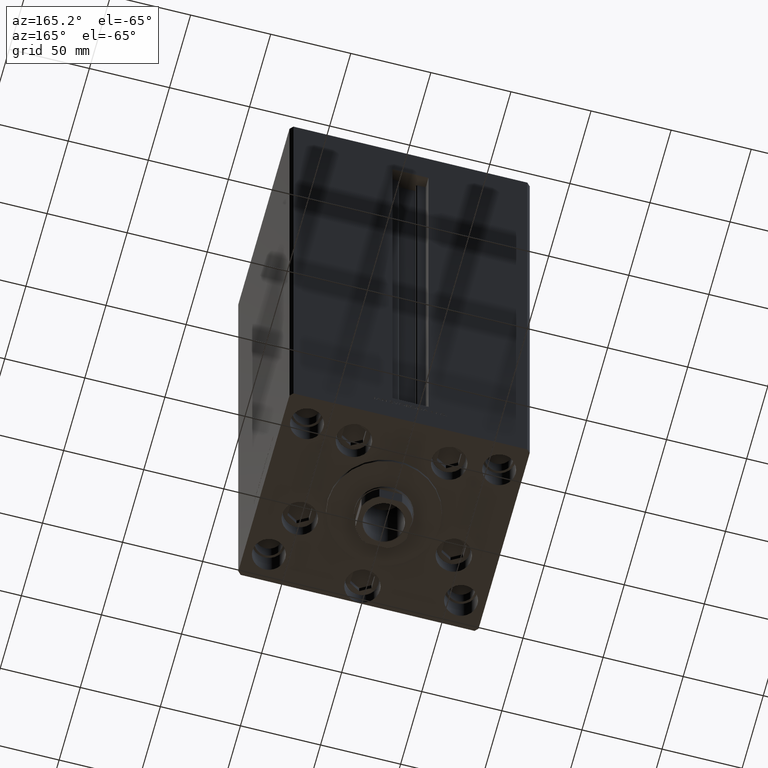
[diagram: clean part render]
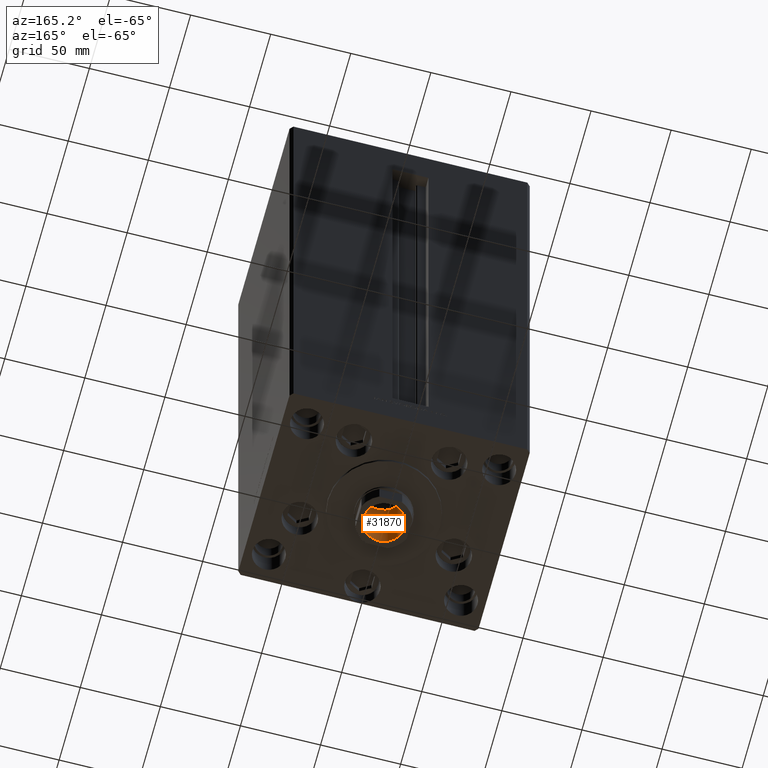
[diagram: same view with one face highlighted and labeled with its STEP entity id]
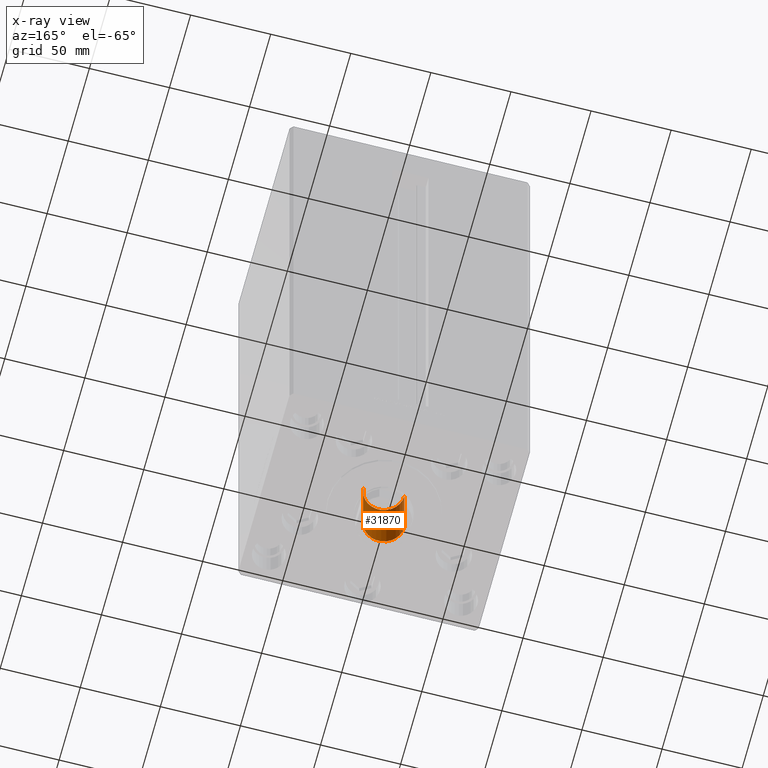
[diagram: x-ray of the same camera — body ghosted, the highlighted face saturated]
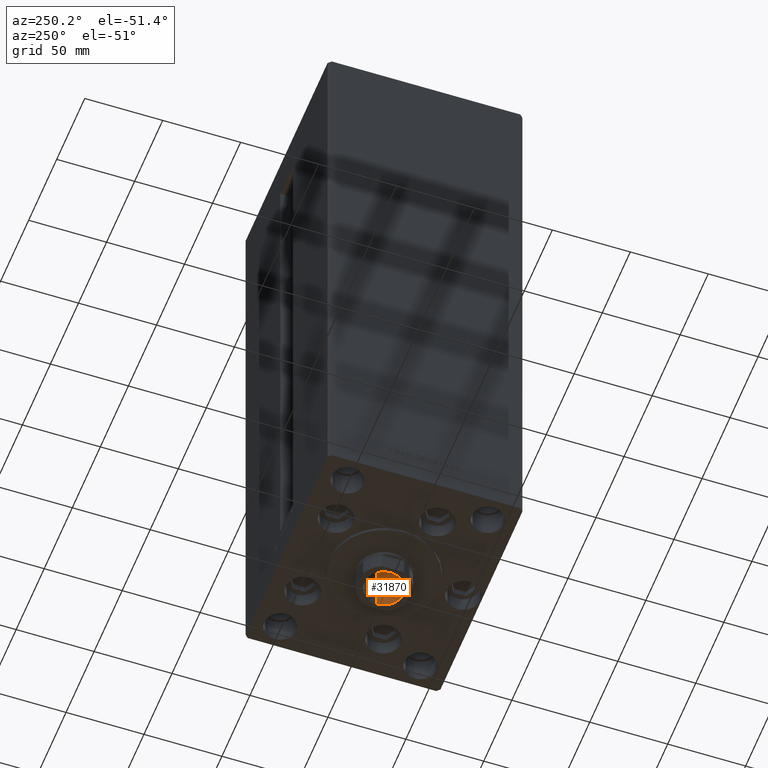
[diagram: same view with one face highlighted and labeled with its STEP entity id]
A machine part, auxiliary view. The second image highlights one B-rep face of the part: STEP entity #31870.
The next image is the same camera in x-ray: the body ghosted, the highlighted face saturated — about 0% of this face is hidden behind the body in this view.
A second angle (auxiliary view) of the same face is appended — the face is thin or edge-on in the first view.
In plain terms, the highlighted cylindrical surface (edge-blend (fillet) strip) has radius 12.75 mm, axis along (0, 0, -1).
Its self-contained STEP definition (entity closure, byte-faithful):
#818 = EDGE_LOOP ( 'NONE', ( #33634, #28030, #40368, #21320 ) ) ;
#1605 = LINE ( 'NONE', #16712, #11240 ) ;
#4235 = EDGE_CURVE ( 'NONE', #21553, #22568, #46443, .T. ) ;
#5735 = CARTESIAN_POINT ( 'NONE',  ( 0.000000000000000000, 0.000000000000000000, 362.1999999999999886 ) ) ;
#5817 = CYLINDRICAL_SURFACE ( 'NONE', #39982, 12.74999999999999467 ) ;
#6997 = EDGE_CURVE ( 'NONE', #28759, #37259, #19698, .T. ) ;
#9294 = DIRECTION ( 'NONE',  ( -0.000000000000000000, -0.000000000000000000, 1.000000000000000000 ) ) ;
#11240 = VECTOR ( 'NONE', #9294, 1000.000000000000000 ) ;
#12725 = CARTESIAN_POINT ( 'NONE',  ( -12.74999999999999467, 1.561424668912874519E-15, 362.1999999999999886 ) ) ;
#13004 = DIRECTION ( 'NONE',  ( -0.000000000000000000, -0.000000000000000000, 1.000000000000000000 ) ) ;
#13170 = DIRECTION ( 'NONE',  ( 1.000000000000000000, 0.000000000000000000, 0.000000000000000000 ) ) ;
#15647 = VECTOR ( 'NONE', #22583, 1000.000000000000000 ) ;
#15711 = CARTESIAN_POINT ( 'NONE',  ( 0.000000000000000000, 0.000000000000000000, 317.5000000000000568 ) ) ;
#16708 = DIRECTION ( 'NONE',  ( 1.000000000000000000, 0.000000000000000000, 0.000000000000000000 ) ) ;
#16712 = CARTESIAN_POINT ( 'NONE',  ( -12.74999999999999467, 1.561424668912874519E-15, 362.5000000000000568 ) ) ;
#16872 = DIRECTION ( 'NONE',  ( 0.000000000000000000, 0.000000000000000000, 1.000000000000000000 ) ) ;
#17688 = EDGE_CURVE ( 'NONE', #21553, #28759, #1605, .T. ) ;
#18623 = LINE ( 'NONE', #33738, #15647 ) ;
#19698 = CIRCLE ( 'NONE', #41055, 12.74999999999999467 ) ;
#21320 = ORIENTED_EDGE ( 'NONE', *, *, #36286, .F. ) ;
#21553 = VERTEX_POINT ( 'NONE', #28490 ) ;
#22568 = VERTEX_POINT ( 'NONE', #43276 ) ;
#22583 = DIRECTION ( 'NONE',  ( -0.000000000000000000, -0.000000000000000000, 1.000000000000000000 ) ) ;
#28030 = ORIENTED_EDGE ( 'NONE', *, *, #17688, .T. ) ;
#28349 = FACE_OUTER_BOUND ( 'NONE', #818, .T. ) ;
#28490 = CARTESIAN_POINT ( 'NONE',  ( -12.74999999999999112, 1.561424668912874125E-15, 317.5000000000000568 ) ) ;
#28759 = VERTEX_POINT ( 'NONE', #12725 ) ;
#29739 = CARTESIAN_POINT ( 'NONE',  ( 12.74999999999999467, 0.000000000000000000, 362.1999999999999886 ) ) ;
#31870 = ADVANCED_FACE ( 'NONE', ( #28349 ), #5817, .F. ) ;
#33634 = ORIENTED_EDGE ( 'NONE', *, *, #4235, .F. ) ;
#33738 = CARTESIAN_POINT ( 'NONE',  ( 12.74999999999999467, 0.000000000000000000, 362.5000000000000568 ) ) ;
#34291 = DIRECTION ( 'NONE',  ( 1.000000000000000000, 0.000000000000000000, 0.000000000000000000 ) ) ;
#35528 = CARTESIAN_POINT ( 'NONE',  ( 0.000000000000000000, 0.000000000000000000, 362.5000000000000568 ) ) ;
#36286 = EDGE_CURVE ( 'NONE', #22568, #37259, #18623, .T. ) ;
#37259 = VERTEX_POINT ( 'NONE', #29739 ) ;
#38248 = DIRECTION ( 'NONE',  ( -0.000000000000000000, -0.000000000000000000, 1.000000000000000000 ) ) ;
#39982 = AXIS2_PLACEMENT_3D ( 'NONE', #35528, #13004, #16708 ) ;
#40368 = ORIENTED_EDGE ( 'NONE', *, *, #6997, .T. ) ;
#41055 = AXIS2_PLACEMENT_3D ( 'NONE', #5735, #16872, #13170 ) ;
#43276 = CARTESIAN_POINT ( 'NONE',  ( 12.74999999999999112, 0.000000000000000000, 317.5000000000000568 ) ) ;
#44906 = AXIS2_PLACEMENT_3D ( 'NONE', #15711, #38248, #34291 ) ;
#46443 = CIRCLE ( 'NONE', #44906, 12.74999999999999112 ) ;